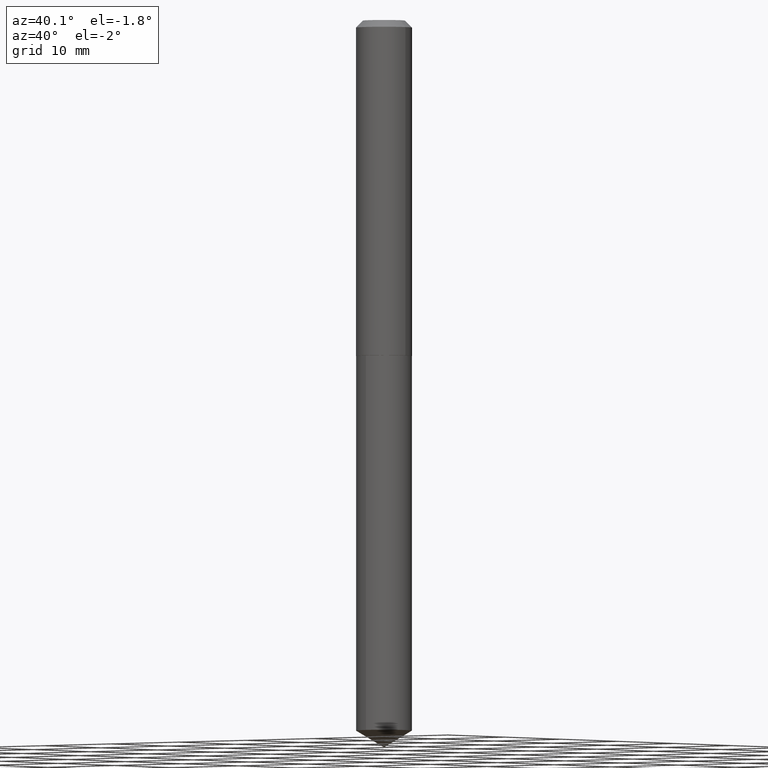
[diagram: clean part render]
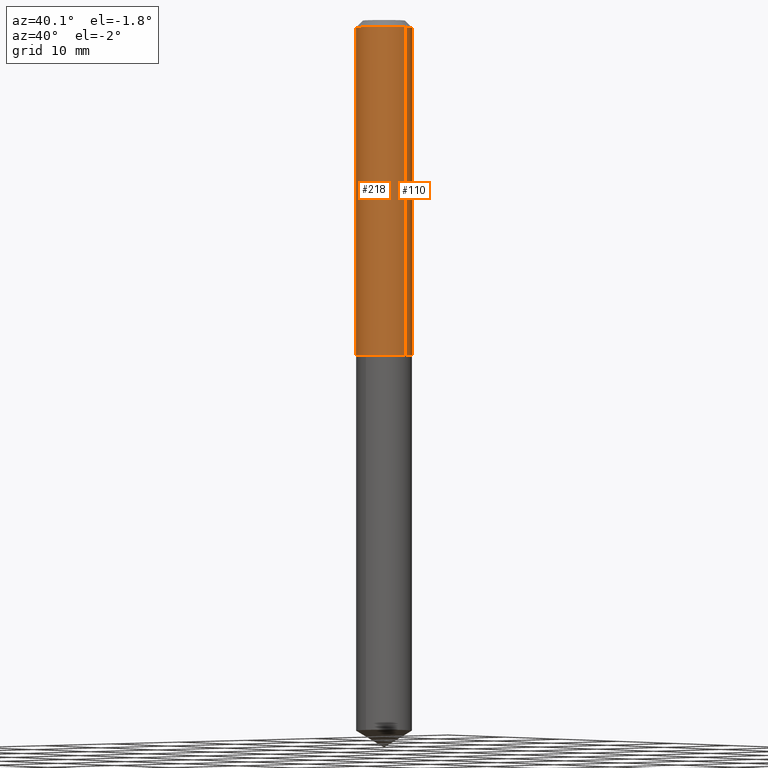
[diagram: same view with one multi-face feature highlighted, each face labeled with its STEP entity id]
A machine part, auxiliary view. The highlighted faces form ONE feature: a constant-radius fillet chain: 2 tangent blend faces with common blend radius 3.175 mm. The faces share edges in the B-rep.
Their STEP definitions:
[1] entity #110 (Cylinder):
#12 = LINE ( 'NONE', #104, #155 ) ;
#19 = CARTESIAN_POINT ( 'NONE',  ( 3.666980474874613215E-29, -5.235476267595297462E-15, -1.499500000000000277 ) ) ;
#22 = DIRECTION ( 'NONE',  ( -2.445468806185136877E-29, 3.491481338843145188E-15, 1.000000000000000000 ) ) ;
#26 = CYLINDRICAL_SURFACE ( 'NONE', #249, 0.1250000000000000833 ) ;
#28 = CARTESIAN_POINT ( 'NONE',  ( 0.1250000000000000000, -9.819791265496324395E-16, -0.03125000000000022898 ) ) ;
#63 = AXIS2_PLACEMENT_3D ( 'NONE', #19, #379, #109 ) ;
#73 = VERTEX_POINT ( 'NONE', #283 ) ;
#78 = DIRECTION ( 'NONE',  ( -2.445468806185136597E-29, 3.491481338843145583E-15, 1.000000000000000000 ) ) ;
#81 = ORIENTED_EDGE ( 'NONE', *, *, #285, .F. ) ;
#85 = CARTESIAN_POINT ( 'NONE',  ( 0.000000000000000000, 0.000000000000000000, 0.000000000000000000 ) ) ;
#87 = LINE ( 'NONE', #211, #238 ) ;
#94 = EDGE_CURVE ( 'NONE', #231, #136, #116, .T. ) ;
#104 = CARTESIAN_POINT ( 'NONE',  ( -0.1250000000000000833, 8.881784197001258240E-16, -6.148668862818636431E-30 ) ) ;
#109 = DIRECTION ( 'NONE',  ( 1.000000000000000000, -6.982962677686269077E-15, 0.000000000000000000 ) ) ;
#110 = ADVANCED_FACE ( 'NONE', ( #350 ), #26, .T. ) ;
#116 = CIRCLE ( 'NONE', #63, 0.1250000000000001665 ) ;
#123 = EDGE_CURVE ( 'NONE', #144, #73, #281, .T. ) ;
#136 = VERTEX_POINT ( 'NONE', #244 ) ;
#144 = VERTEX_POINT ( 'NONE', #28 ) ;
#155 = VECTOR ( 'NONE', #259, 39.37007874015748143 ) ;
#171 = EDGE_LOOP ( 'NONE', ( #193, #248, #242, #81 ) ) ;
#193 = ORIENTED_EDGE ( 'NONE', *, *, #94, .T. ) ;
#209 = DIRECTION ( 'NONE',  ( 1.000000000000000000, -6.982962677686266711E-15, 4.876176775795935793E-29 ) ) ;
#211 = CARTESIAN_POINT ( 'NONE',  ( 0.1250000000000000833, -8.728703347107839305E-16, 6.095220969744923945E-30 ) ) ;
#231 = VERTEX_POINT ( 'NONE', #286 ) ;
#238 = VECTOR ( 'NONE', #22, 39.37007874015748143 ) ;
#242 = ORIENTED_EDGE ( 'NONE', *, *, #123, .F. ) ;
#244 = CARTESIAN_POINT ( 'NONE',  ( -0.1250000000000001665, -4.347297847895170652E-15, -1.499500000000000277 ) ) ;
#248 = ORIENTED_EDGE ( 'NONE', *, *, #348, .T. ) ;
#249 = AXIS2_PLACEMENT_3D ( 'NONE', #85, #78, #209 ) ;
#259 = DIRECTION ( 'NONE',  ( -2.445468806185136877E-29, 3.491481338843145188E-15, 1.000000000000000000 ) ) ;
#269 = CARTESIAN_POINT ( 'NONE',  ( 7.642090019328607917E-31, -1.091087918388491006E-16, -0.03125000000000022898 ) ) ;
#271 = DIRECTION ( 'NONE',  ( -2.445468806185136597E-29, 3.491481338843145583E-15, 1.000000000000000000 ) ) ;
#281 = CIRCLE ( 'NONE', #335, 0.1250000000000000000 ) ;
#283 = CARTESIAN_POINT ( 'NONE',  ( -0.1250000000000000000, -1.784114110016946866E-15, -0.03125000000000022898 ) ) ;
#285 = EDGE_CURVE ( 'NONE', #231, #144, #87, .T. ) ;
#286 = CARTESIAN_POINT ( 'NONE',  ( 0.1250000000000001665, -6.108346602306082379E-15, -1.499500000000000277 ) ) ;
#320 = DIRECTION ( 'NONE',  ( 1.000000000000000000, -6.982962677686266711E-15, 0.000000000000000000 ) ) ;
#335 = AXIS2_PLACEMENT_3D ( 'NONE', #269, #271, #320 ) ;
#348 = EDGE_CURVE ( 'NONE', #136, #73, #12, .T. ) ;
#350 = FACE_OUTER_BOUND ( 'NONE', #171, .T. ) ;
#379 = DIRECTION ( 'NONE',  ( -2.445468806185136597E-29, 3.491481338843145583E-15, 1.000000000000000000 ) ) ;
[2] entity #218 (Cylinder):
#12 = LINE ( 'NONE', #104, #155 ) ;
#22 = DIRECTION ( 'NONE',  ( -2.445468806185136877E-29, 3.491481338843145188E-15, 1.000000000000000000 ) ) ;
#28 = CARTESIAN_POINT ( 'NONE',  ( 0.1250000000000000000, -9.819791265496324395E-16, -0.03125000000000022898 ) ) ;
#41 = CIRCLE ( 'NONE', #274, 0.1250000000000000000 ) ;
#56 = ORIENTED_EDGE ( 'NONE', *, *, #196, .F. ) ;
#62 = DIRECTION ( 'NONE',  ( -2.445468806185136597E-29, 3.491481338843145583E-15, 1.000000000000000000 ) ) ;
#73 = VERTEX_POINT ( 'NONE', #283 ) ;
#87 = LINE ( 'NONE', #211, #238 ) ;
#91 = CIRCLE ( 'NONE', #275, 0.1250000000000001665 ) ;
#92 = CARTESIAN_POINT ( 'NONE',  ( 7.642090019328607917E-31, -1.091087918388491006E-16, -0.03125000000000022898 ) ) ;
#95 = CARTESIAN_POINT ( 'NONE',  ( 0.000000000000000000, 0.000000000000000000, 0.000000000000000000 ) ) ;
#104 = CARTESIAN_POINT ( 'NONE',  ( -0.1250000000000000833, 8.881784197001258240E-16, -6.148668862818636431E-30 ) ) ;
#120 = DIRECTION ( 'NONE',  ( 1.000000000000000000, -6.982962677686266711E-15, 0.000000000000000000 ) ) ;
#136 = VERTEX_POINT ( 'NONE', #244 ) ;
#144 = VERTEX_POINT ( 'NONE', #28 ) ;
#155 = VECTOR ( 'NONE', #259, 39.37007874015748143 ) ;
#172 = CARTESIAN_POINT ( 'NONE',  ( 3.666980474874613215E-29, -5.235476267595297462E-15, -1.499500000000000277 ) ) ;
#174 = ORIENTED_EDGE ( 'NONE', *, *, #257, .T. ) ;
#182 = DIRECTION ( 'NONE',  ( -2.445468806185136597E-29, 3.491481338843145583E-15, 1.000000000000000000 ) ) ;
#185 = FACE_OUTER_BOUND ( 'NONE', #226, .T. ) ;
#196 = EDGE_CURVE ( 'NONE', #73, #144, #41, .T. ) ;
#211 = CARTESIAN_POINT ( 'NONE',  ( 0.1250000000000000833, -8.728703347107839305E-16, 6.095220969744923945E-30 ) ) ;
#218 = ADVANCED_FACE ( 'NONE', ( #185 ), #298, .T. ) ;
#226 = EDGE_LOOP ( 'NONE', ( #232, #174, #280, #56 ) ) ;
#231 = VERTEX_POINT ( 'NONE', #286 ) ;
#232 = ORIENTED_EDGE ( 'NONE', *, *, #348, .F. ) ;
#236 = DIRECTION ( 'NONE',  ( 1.000000000000000000, -6.982962677686266711E-15, 4.876176775795935793E-29 ) ) ;
#238 = VECTOR ( 'NONE', #22, 39.37007874015748143 ) ;
#244 = CARTESIAN_POINT ( 'NONE',  ( -0.1250000000000001665, -4.347297847895170652E-15, -1.499500000000000277 ) ) ;
#254 = AXIS2_PLACEMENT_3D ( 'NONE', #95, #62, #236 ) ;
#257 = EDGE_CURVE ( 'NONE', #136, #231, #91, .T. ) ;
#259 = DIRECTION ( 'NONE',  ( -2.445468806185136877E-29, 3.491481338843145188E-15, 1.000000000000000000 ) ) ;
#263 = DIRECTION ( 'NONE',  ( 1.000000000000000000, -6.982962677686269077E-15, 0.000000000000000000 ) ) ;
#274 = AXIS2_PLACEMENT_3D ( 'NONE', #92, #182, #120 ) ;
#275 = AXIS2_PLACEMENT_3D ( 'NONE', #172, #352, #263 ) ;
#280 = ORIENTED_EDGE ( 'NONE', *, *, #285, .T. ) ;
#283 = CARTESIAN_POINT ( 'NONE',  ( -0.1250000000000000000, -1.784114110016946866E-15, -0.03125000000000022898 ) ) ;
#285 = EDGE_CURVE ( 'NONE', #231, #144, #87, .T. ) ;
#286 = CARTESIAN_POINT ( 'NONE',  ( 0.1250000000000001665, -6.108346602306082379E-15, -1.499500000000000277 ) ) ;
#298 = CYLINDRICAL_SURFACE ( 'NONE', #254, 0.1250000000000000833 ) ;
#348 = EDGE_CURVE ( 'NONE', #136, #73, #12, .T. ) ;
#352 = DIRECTION ( 'NONE',  ( -2.445468806185136597E-29, 3.491481338843145583E-15, 1.000000000000000000 ) ) ;